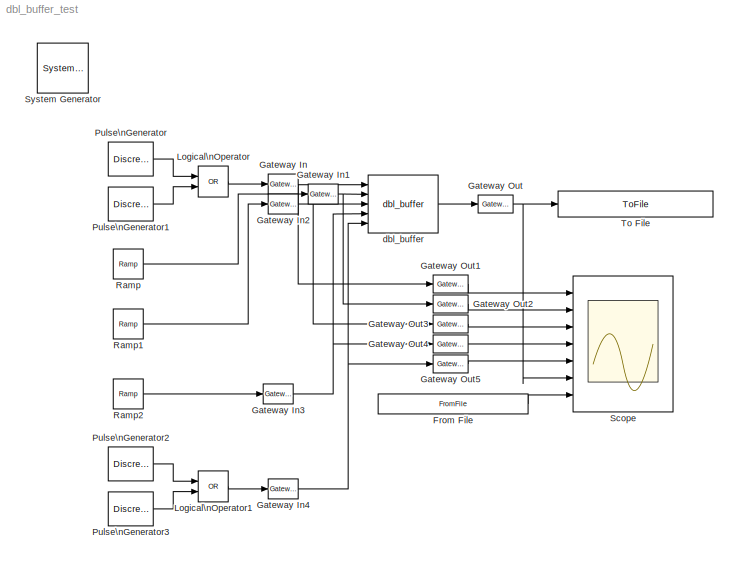
MODEL dbl_buffer_test
KIND model
BLOCK [Reference]  System Generator  REF=xbsIndex_r4/ System Generator
  AttributesFormatString = System\\nGenerator
  FunctionWithSeparateData = off
  Ports = []
  RTWMemSecDataConstants = Inherit from model
  RTWMemSecDataInternal = Inherit from model
  RTWMemSecDataParameters = Inherit from model
  RTWMemSecFuncExecute = Inherit from model
  RTWMemSecFuncInitTerm = Inherit from model
  ShowPortLabels = FromPortIcon
  SourceBlock = xbsIndex_r4/ System Generator
  SourceType = Xilinx System Generator Block
  SystemSampleTime = -1
  Tag = genX
  UserData = DataTag0
  UserDataPersistent = on
  block_type = sysgen
  block_version = 10.1.1
  clock_wrapper = Clock Enables
  core_generation = According to Block Masks
  dbl_ovrd = According to Block Masks
  dcm_input_clock_period = 100
  deprecated_control = off
  directory = ./netlist
  eval_field = 0
  has_advanced_control = 0
  incr_netlist = off
  infoedit = System Generator
  package = ff668
  part = xc4vsx35
  run_coregen = off
  sg_icon_stat = 51,50,-1,-1,red,beige,0,07734,right
  sg_mask_display = fprintf('','COMMENT: begin icon graphics');\npatch([0 51 51 0 ],[0 0 50 50 ],[0.93 0.92 0.86]);\npatch([12 4 16 4 12 25 29 33 47 36 25 17 29 17 25 36 47 33 29 25 12 ],[5 13 25 37 45 45 41 45 45 34 45 37 25 13 5 16 5 5 9 5 5 ],[0.6 0.2 0.25]);\nplot([0 51 51 0 0 ],[0 0 50 50 0 ]);\nfprintf('','COMMENT: end icon graphics');\nfprintf('','COMMENT: begin icon text');\nfprintf('','COMMENT: end icon text...<+5ch>
  sggui_pos = -1,-1,-1,-1
  simulink_period = 1
  speed = -10
  synthesis_tool = XST
  sysclk_period = 100
  testbench = off
  trim_vbits = Everywhere in SubSystem
  xilinxfamily = Virtex4
BLOCK [FromFile] From File
  FileName = dbl_buffer_test_reference.mat
  SampleTime = 1
BLOCK [Reference] Gateway In  REF=xbsIndex_r4/Gateway In
  LOCs = {}
  Ports = [1, 1]
  SourceBlock = xbsIndex_r4/Gateway In
  SourceType = Xilinx Gateway In Block
  arith_type = Boolean
  bin_pt = 14
  block_type = gatewayin
  block_version = 10.1.1
  dbl_ovrd = off
  has_advanced_control = 0
  infoedit = Gateway in block.  Converts inputs of type Simulink integer, double and fixed point to  Xilinx fixed point type.<P><P>Hardware notes:  In hardware these blocks become top level input ports.  <repeated x5 — deduplicated; at blocks: Gateway In, Gateway In1, Gateway In2, Gateway In3, Gateway In4>
  locs_specified = off
  n_bits = 16
  overflow = Saturate
  period = 1
  quantization = Round  (unbiased: +/- Inf)
  sg_icon_stat = 30,20,1,1,white,yellow,0,bc55d28f,right
  sg_mask_display = fprintf('','COMMENT: begin icon graphics');\npatch([0 30 30 0 ],[0 0 20 20 ],[0.95 0.93 0.65]);\npatch([9 6 11 6 9 14 15 16 22 18 14 11 16 11 14 18 22 16 15 14 9 ],[2 5 10 15 18 18 17 18 18 14 18 15 10 5 2 6 2 2 3 2 2 ],[0.98 0.96 0.92]);\nplot([0 30 30 0 0 ],[0 0 20 20 0 ]);\nfprintf('','COMMENT: end icon graphics');\nfprintf('','COMMENT: begin icon text');\ncolor('black');port_label('input',1,'\...<+126ch>  <repeated x5 — deduplicated; at blocks: Gateway In, Gateway In1, Gateway In2, Gateway In3, Gateway In4>
  sggui_pos = 20,20,407,458
  timing_constraint = None
  xl_area = [0,0,0,0,0,0,0]
  xl_use_area = off
BLOCK [Reference] Gateway In1  REF=xbsIndex_r4/Gateway In
  LOCs = {}
  Ports = [1, 1]
  SourceBlock = xbsIndex_r4/Gateway In
  SourceType = Xilinx Gateway In Block
  arith_type = Unsigned
  bin_pt = 0
  block_type = gatewayin
  block_version = 10.1.1
  dbl_ovrd = off
  has_advanced_control = 0
  locs_specified = off
  n_bits = 6
  overflow = Wrap
  period = 1
  quantization = Truncate
  sg_icon_stat = 30,20,1,1,white,yellow,0,bc55d28f,right
  sggui_pos = 20,20,407,458
  timing_constraint = None
  xl_area = [0,0,0,0,0,0,0]
  xl_use_area = off
BLOCK [Reference] Gateway In2  REF=xbsIndex_r4/Gateway In
  LOCs = {}
  Ports = [1, 1]
  SourceBlock = xbsIndex_r4/Gateway In
  SourceType = Xilinx Gateway In Block
  arith_type = Unsigned
  bin_pt = 0
  block_type = gatewayin
  block_version = 10.1.1
  dbl_ovrd = off
  has_advanced_control = 0
  locs_specified = off
  n_bits = 6
  overflow = Wrap
  period = 1
  quantization = Truncate
  sg_icon_stat = 30,20,1,1,white,yellow,0,bc55d28f,right
  sggui_pos = 20,20,407,458
  timing_constraint = None
  xl_area = [0,0,0,0,0,0,0]
  xl_use_area = off
BLOCK [Reference] Gateway In3  REF=xbsIndex_r4/Gateway In
  LOCs = {}
  Ports = [1, 1]
  SourceBlock = xbsIndex_r4/Gateway In
  SourceType = Xilinx Gateway In Block
  arith_type = Unsigned
  bin_pt = 0
  block_type = gatewayin
  block_version = 10.1.1
  dbl_ovrd = off
  has_advanced_control = 0
  locs_specified = off
  n_bits = 8
  overflow = Wrap
  period = 1
  quantization = Truncate
  sg_icon_stat = 30,20,1,1,white,yellow,0,bc55d28f,right
  sggui_pos = 20,20,407,458
  timing_constraint = None
  xl_area = [0,0,0,0,0,0,0]
  xl_use_area = off
BLOCK [Reference] Gateway In4  REF=xbsIndex_r4/Gateway In
  LOCs = {}
  Ports = [1, 1]
  SourceBlock = xbsIndex_r4/Gateway In
  SourceType = Xilinx Gateway In Block
  arith_type = Boolean
  bin_pt = 14
  block_type = gatewayin
  block_version = 10.1.1
  dbl_ovrd = off
  has_advanced_control = 0
  locs_specified = off
  n_bits = 16
  overflow = Saturate
  period = 1
  quantization = Round  (unbiased: +/- Inf)
  sg_icon_stat = 30,20,1,1,white,yellow,0,bc55d28f,right
  sggui_pos = 20,20,407,458
  timing_constraint = None
  xl_area = [0,0,0,0,0,0,0]
  xl_use_area = off
BLOCK [Reference] Gateway Out  REF=xbsIndex_r4/Gateway Out
  LOCs = {}
  Ports = [1, 1]
  SourceBlock = xbsIndex_r4/Gateway Out
  SourceType = Xilinx Gateway Out Block
  block_type = gatewayout
  block_version = 10.1.1
  has_advanced_control = 0
  hdl_port = on
  infoedit = Gateway out block.  Converts Xilinx fixed point inputs into ouputs of type Simulink integer, double, or fixed point.<P><P>Hardware notes:  In hardware these blocks become top level output ports or are discarded, depending on how they are configured.  <repeated x6 — deduplicated; at blocks: Gateway Out, Gateway Out1, Gateway Out2, Gateway Out3, Gateway Out4, Gateway Out5>
  locs_specified = off
  sg_icon_stat = 35,18,1,1,white,yellow,0,38220381,right
  sg_mask_display = fprintf('','COMMENT: begin icon graphics');\npatch([0 35 35 0 ],[0 0 18 18 ],[0.95 0.93 0.65]);\npatch([13 10 14 10 13 18 19 20 25 21 17 14 18 14 17 21 25 20 19 18 13 ],[2 5 9 13 16 16 15 16 16 12 16 13 9 5 2 6 2 2 3 2 2 ],[0.98 0.96 0.92]);\nplot([0 35 35 0 0 ],[0 0 18 18 0 ]);\nfprintf('','COMMENT: end icon graphics');\nfprintf('','COMMENT: begin icon text');\ncolor('black');port_label('input',1...<+130ch>  <repeated x6 — deduplicated; at blocks: Gateway Out, Gateway Out1, Gateway Out2, Gateway Out3, Gateway Out4, Gateway Out5>
  sggui_pos = -1,-1,-1,-1
  timing_constraint = None
  xl_area = [0,0,0,0,0,0,0]
  xl_use_area = off
BLOCK [Reference] Gateway Out1  REF=xbsIndex_r4/Gateway Out
  LOCs = {}
  Ports = [1, 1]
  SourceBlock = xbsIndex_r4/Gateway Out
  SourceType = Xilinx Gateway Out Block
  block_type = gatewayout
  block_version = 10.1.1
  has_advanced_control = 0
  hdl_port = on
  locs_specified = off
  sg_icon_stat = 35,18,1,1,white,yellow,0,38220381,right
  sggui_pos = -1,-1,-1,-1
  timing_constraint = None
  xl_area = [0,0,0,0,0,0,0]
  xl_use_area = off
BLOCK [Reference] Gateway Out2  REF=xbsIndex_r4/Gateway Out
  LOCs = {}
  Ports = [1, 1]
  SourceBlock = xbsIndex_r4/Gateway Out
  SourceType = Xilinx Gateway Out Block
  block_type = gatewayout
  block_version = 10.1.1
  has_advanced_control = 0
  hdl_port = on
  locs_specified = off
  sg_icon_stat = 35,18,1,1,white,yellow,0,38220381,right
  sggui_pos = -1,-1,-1,-1
  timing_constraint = None
  xl_area = [0,0,0,0,0,0,0]
  xl_use_area = off
BLOCK [Reference] Gateway Out3  REF=xbsIndex_r4/Gateway Out
  LOCs = {}
  Ports = [1, 1]
  SourceBlock = xbsIndex_r4/Gateway Out
  SourceType = Xilinx Gateway Out Block
  block_type = gatewayout
  block_version = 10.1.1
  has_advanced_control = 0
  hdl_port = on
  locs_specified = off
  sg_icon_stat = 35,18,1,1,white,yellow,0,38220381,right
  sggui_pos = -1,-1,-1,-1
  timing_constraint = None
  xl_area = [0,0,0,0,0,0,0]
  xl_use_area = off
BLOCK [Reference] Gateway Out4  REF=xbsIndex_r4/Gateway Out
  LOCs = {}
  Ports = [1, 1]
  SourceBlock = xbsIndex_r4/Gateway Out
  SourceType = Xilinx Gateway Out Block
  block_type = gatewayout
  block_version = 10.1.1
  has_advanced_control = 0
  hdl_port = on
  locs_specified = off
  sg_icon_stat = 35,18,1,1,white,yellow,0,38220381,right
  sggui_pos = -1,-1,-1,-1
  timing_constraint = None
  xl_area = [0,0,0,0,0,0,0]
  xl_use_area = off
BLOCK [Reference] Gateway Out5  REF=xbsIndex_r4/Gateway Out
  LOCs = {}
  Ports = [1, 1]
  SourceBlock = xbsIndex_r4/Gateway Out
  SourceType = Xilinx Gateway Out Block
  block_type = gatewayout
  block_version = 10.1.1
  has_advanced_control = 0
  hdl_port = on
  locs_specified = off
  sg_icon_stat = 35,18,1,1,white,yellow,0,38220381,right
  sggui_pos = -1,-1,-1,-1
  timing_constraint = None
  xl_area = [0,0,0,0,0,0,0]
  xl_use_area = off
BLOCK [Logic] Logical\nOperator
  AllPortsSameDT = off
  Operator = OR
  OutDataTypeMode = boolean
  Ports = [2, 1]
BLOCK [Logic] Logical\nOperator1
  AllPortsSameDT = off
  Operator = OR
  OutDataTypeMode = boolean
  Ports = [2, 1]
BLOCK [DiscretePulseGenerator] Pulse\nGenerator
  Period = 127
  PhaseDelay = 7
  Ports = [0, 1]
  PulseWidth = 67
BLOCK [DiscretePulseGenerator] Pulse\nGenerator1
  Period = 197
  PhaseDelay = 23
  Ports = [0, 1]
  PulseWidth = 77
BLOCK [DiscretePulseGenerator] Pulse\nGenerator2
  Period = 45
  PhaseDelay = 3
  Ports = [0, 1]
  PulseWidth = 23
BLOCK [DiscretePulseGenerator] Pulse\nGenerator3
  Period = 67
  PhaseDelay = 3
  Ports = [0, 1]
  PulseWidth = 23
BLOCK [Reference] Ramp  REF=simulink/Sources/Ramp
  FunctionWithSeparateData = off
  Ports = [0, 1]
  RTWMemSecDataConstants = Inherit from model
  RTWMemSecDataInternal = Inherit from model
  RTWMemSecDataParameters = Inherit from model
  RTWMemSecFuncExecute = Inherit from model
  RTWMemSecFuncInitTerm = Inherit from model
  ShowPortLabels = FromPortIcon
  SourceBlock = simulink/Sources/Ramp
  SourceType = Ramp
  SystemSampleTime = -1
  VectorParams1D = on
  X0 = 0
  slope = 1
  start = 0
BLOCK [Reference] Ramp1  REF=simulink/Sources/Ramp
  FunctionWithSeparateData = off
  Ports = [0, 1]
  RTWMemSecDataConstants = Inherit from model
  RTWMemSecDataInternal = Inherit from model
  RTWMemSecDataParameters = Inherit from model
  RTWMemSecFuncExecute = Inherit from model
  RTWMemSecFuncInitTerm = Inherit from model
  ShowPortLabels = FromPortIcon
  SourceBlock = simulink/Sources/Ramp
  SourceType = Ramp
  SystemSampleTime = -1
  VectorParams1D = on
  X0 = 0
  slope = 1
  start = 10
BLOCK [Reference] Ramp2  REF=simulink/Sources/Ramp
  FunctionWithSeparateData = off
  Ports = [0, 1]
  RTWMemSecDataConstants = Inherit from model
  RTWMemSecDataInternal = Inherit from model
  RTWMemSecDataParameters = Inherit from model
  RTWMemSecFuncExecute = Inherit from model
  RTWMemSecFuncInitTerm = Inherit from model
  ShowPortLabels = FromPortIcon
  SourceBlock = simulink/Sources/Ramp
  SourceType = Ramp
  SystemSampleTime = -1
  VectorParams1D = on
  X0 = 0
  slope = 1
  start = 0
BLOCK [Scope] Scope
  DataFormat = StructureWithTime
  Floating = off
  NumInputPorts = 7
  Ports = [7]
  SampleTime = 0
  YMax = 2~5~5~5~5~5~5
  YMin = 0~-5~-5~-5~-5~-5~-5
BLOCK [ToFile] To File
  Filename = dbl_buffer_test_output.mat
  MatrixName = output
BLOCK [Reference] dbl_buffer  REF=casper_library/Reorder/dbl_buffer  (lib defined in mdl_138b2fc3435f, mdl_4ed325b712b3, +2 more)
  FunctionWithSeparateData = off
  Ports = [5, 1]
  RTWMemSecDataConstants = Inherit from model
  RTWMemSecDataInternal = Inherit from model
  RTWMemSecDataParameters = Inherit from model
  RTWMemSecFuncExecute = Inherit from model
  RTWMemSecFuncInitTerm = Inherit from model
  ShowPortLabels = FromPortIcon
  SourceBlock = casper_library/Reorder/dbl_buffer
  SourceType = dbl_buffer
  SystemSampleTime = -1
  depth = 64
  latency = 3
LINE From File:1 -> Scope:7
NET Gateway In1:1 -> Gateway Out2:1, dbl_buffer:2
NET Gateway In2:1 -> Gateway Out3:1, dbl_buffer:3
NET Gateway In3:1 -> Gateway Out4:1, dbl_buffer:4
NET Gateway In4:1 -> Gateway Out5:1, dbl_buffer:5
NET Gateway In:1 -> Gateway Out1:1, dbl_buffer:1
LINE Gateway Out1:1 -> Scope:1
LINE Gateway Out2:1 -> Scope:2
LINE Gateway Out3:1 -> Scope:3
LINE Gateway Out4:1 -> Scope:4
LINE Gateway Out5:1 -> Scope:5
NET Gateway Out:1 -> Scope:6, To File:1
LINE Logical\nOperator1:1 -> Gateway In4:1
LINE Logical\nOperator:1 -> Gateway In:1
LINE Pulse\nGenerator1:1 -> Logical\nOperator:2
LINE Pulse\nGenerator2:1 -> Logical\nOperator1:1
LINE Pulse\nGenerator3:1 -> Logical\nOperator1:2
LINE Pulse\nGenerator:1 -> Logical\nOperator:1
LINE Ramp1:1 -> Gateway In2:1
LINE Ramp2:1 -> Gateway In3:1
LINE Ramp:1 -> Gateway In1:1
LINE dbl_buffer:1 -> Gateway Out:1
note: NET lines group one-source signal fan-out (src -> all destinations, sorted); 1:1 wires keep LINE
